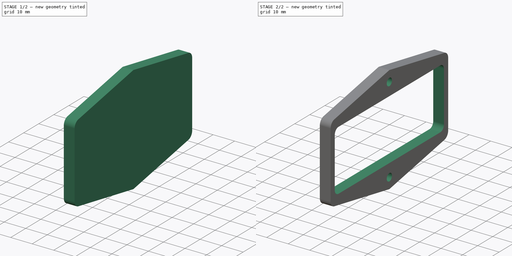
[diagram: build sequence overview — one tinted view per stage of 2, left to right]
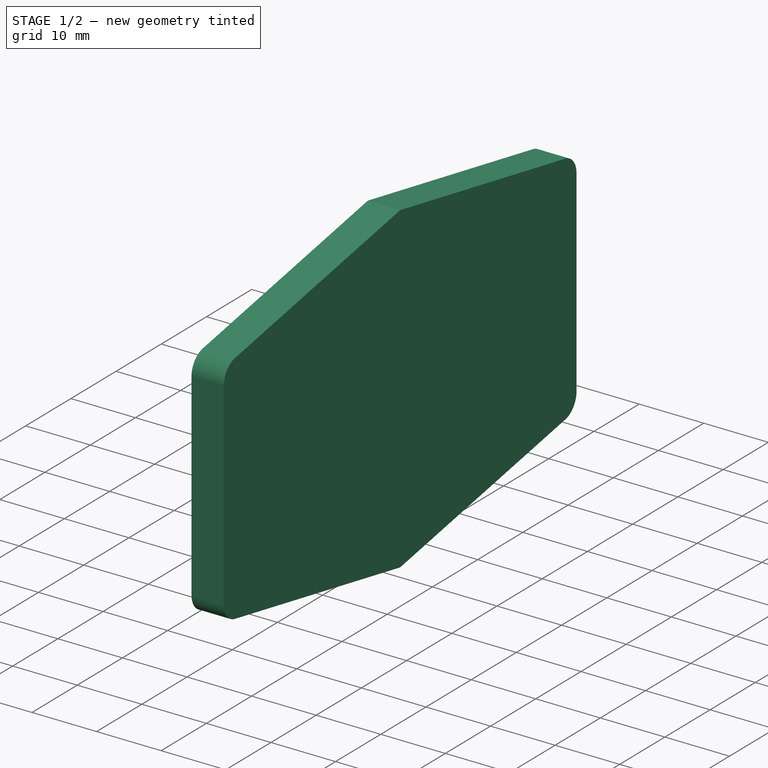
[diagram: stage 1 of 2 — iso view after this stage's code; geometry added in this stage tinted green]
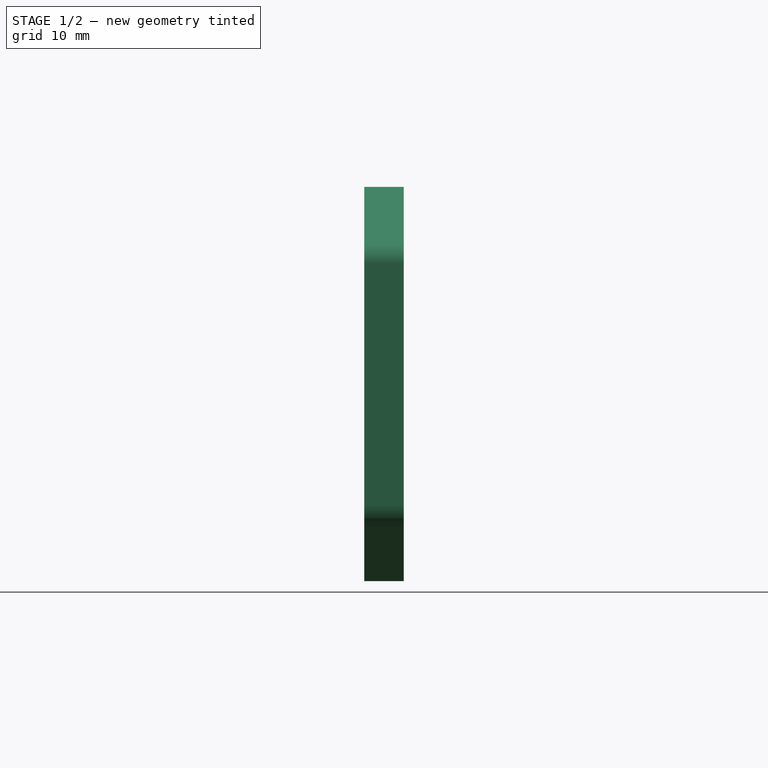
[diagram: stage 1 of 2 — front view after this stage's code; geometry added in this stage tinted green]
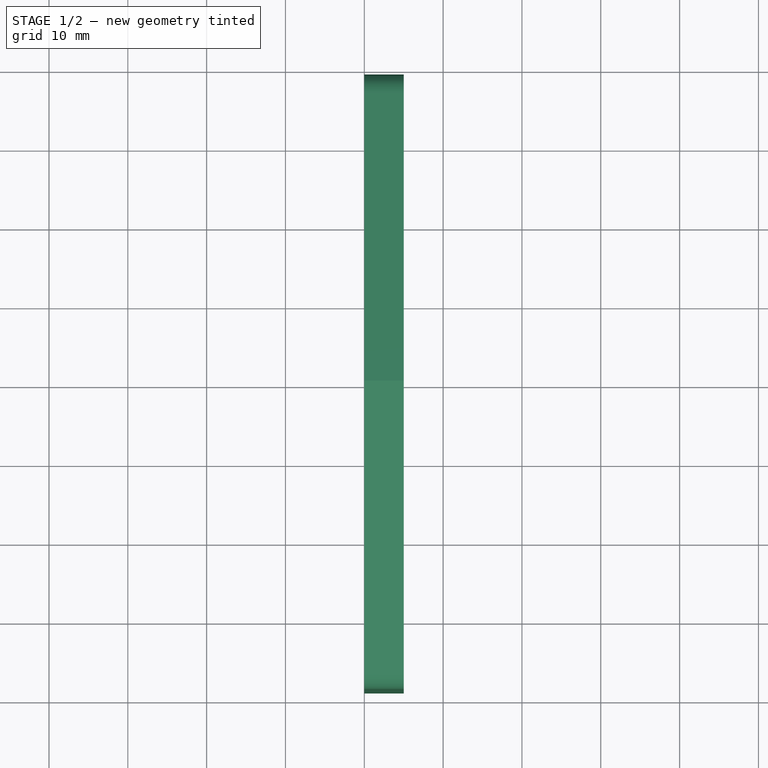
[diagram: stage 1 of 2 — top view after this stage's code; geometry added in this stage tinted green]
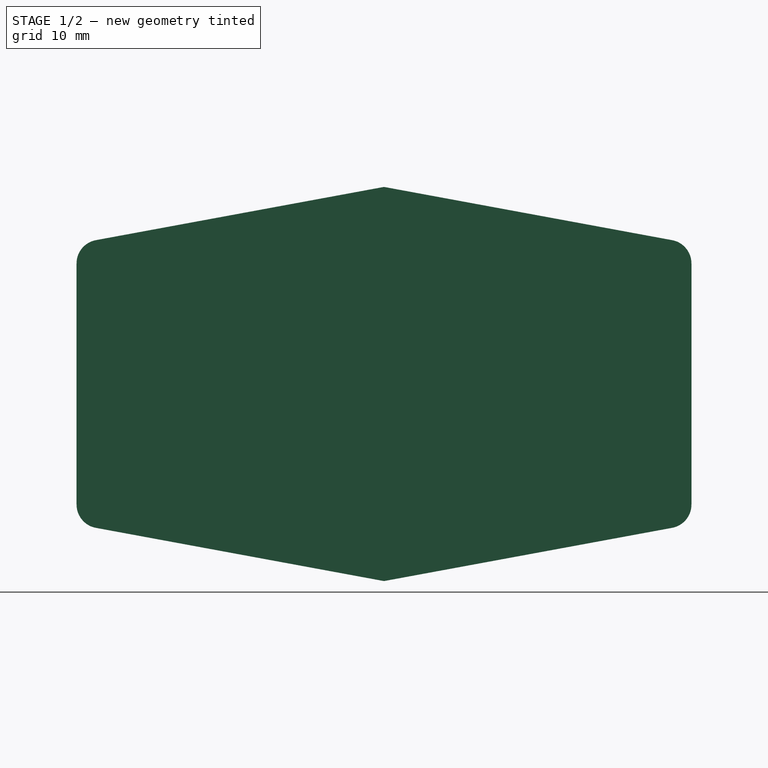
[diagram: stage 1 of 2 — right view after this stage's code; geometry added in this stage tinted green]
FCSTD DOCUMENT  (FreeCAD 1.0R38641 +468 (Git))
Label: qualtek_power_entry
License: All rights reserved
LicenseURL: https://en.wikipedia.org/wiki/All_rights_reserved
objects: Sketcher::SketchObject×2, PartDesign::Pad×1, PartDesign::Pocket×1, PartDesign::Body×1
note: 11 computed .brp shape members not serialized (recipe doc carries the construction recipe); baked Part::Feature solids carry a one-line shape summary decoded from their .brp

FEATURE [Sketcher::SketchObject] Sketch001
  ArcFitTolerance = 1e-06
  FullyConstrained = false
  MakeInternals = false
  MapMode = 5
  Placement = pos=(0,0,0) rot=(0.57735,0.57735,0.57735;2.0944rad)
  sketch-geometry (17):
    g0: LineSegment StartX=39 StartY=9.70127 StartZ=0 EndX=39 EndY=40.2987 EndZ=0
    g1: LineSegment StartX=-39 StartY=40.2987 StartZ=0 EndX=-39 EndY=9.70127 EndZ=0
    g2: LineSegment StartX=36.545 StartY=43.2488 StartZ=0 EndX=0 EndY=50 EndZ=0
    g3: LineSegment StartX=0 StartY=50 StartZ=0 EndX=-36.545 EndY=43.2488 EndZ=0
    g4: LineSegment StartX=-36.545 StartY=6.75119 StartZ=0 EndX=0 EndY=0 EndZ=0
    g5: LineSegment StartX=0 StartY=0 StartZ=0 EndX=36.545 EndY=6.75119 EndZ=0
    g6: ArcOfCircle CenterX=-36 CenterY=40.2987 CenterZ=0 NormalX=0 NormalY=0 NormalZ=1 AngleXU=0 Radius=3 StartAngle=1.75347 EndAngle=3.14159
    g7: GeomPoint [constr] X=-39 Y=42.7953 Z=0
    g8: ArcOfCircle CenterX=36 CenterY=40.2987 CenterZ=0 NormalX=0 NormalY=0 NormalZ=1 AngleXU=0 Radius=3 StartAngle=7e-16 EndAngle=1.38812
    g9: GeomPoint [constr] X=39 Y=42.7953 Z=0
    g10: ArcOfCircle CenterX=36 CenterY=9.70127 CenterZ=0 NormalX=0 NormalY=0 NormalZ=1 AngleXU=0 Radius=3 StartAngle=4.89507 EndAngle=6.28319
    g11: GeomPoint [constr] X=39 Y=7.20472 Z=0
    g12: ArcOfCircle CenterX=-36 CenterY=9.70127 CenterZ=0 NormalX=0 NormalY=0 NormalZ=1 AngleXU=0 Radius=3 StartAngle=3.14159 EndAngle=4.52971
    g13: GeomPoint [constr] X=-39 Y=7.20472 Z=0
    g14: LineSegment [constr] StartX=-39 StartY=25 StartZ=0 EndX=39 EndY=25 EndZ=0
    g15: LineSegment [constr] StartX=0 StartY=50 StartZ=0 EndX=2.5e-15 EndY=25 EndZ=0
    g16: LineSegment [constr] StartX=2.5e-15 StartY=25 StartZ=0 EndX=0 EndY=0 EndZ=0
  constraints (38):
    c: Vertical(g0)
    c: Vertical(g1)
    c: Coincident(g2,g3)
    c: Coincident(g4,g5)
    c: DistanceY(g4,g2) = 50
    c: DistanceX(g13,g11) = 78
    c: PointOnObject(g7,g1)
    c: PointOnObject(g7,g3)
    c: Tangent(g1,g6) = -1.5708
    c: Tangent(g3,g6) = -1.5708
    c: PointOnObject(g9,g0)
    c: PointOnObject(g9,g2)
    c: Tangent(g0,g8) = -1.5708
    c: Tangent(g2,g8) = -1.5708
    c: PointOnObject(g11,g0)
    c: PointOnObject(g11,g5)
    c: Tangent(g0,g10) = -1.5708
    c: Tangent(g5,g10) = -1.5708
    c: PointOnObject(g13,g1)
    c: PointOnObject(g13,g4)
    c: Tangent(g1,g12) = -1.5708
    c: Tangent(g4,g12) = -1.5708
    c: Equal(g12,g6)
    c: Equal(g6,g8)
    c: Equal(g8,g10)
    c: Radius(g6) = 3
    c: Equal(g3,g2)
    c: Coincident(g4,g-1)
    c: Equal(g0,g1)
    c: Equal(g5,g4)
    c: PointOnObject(g2,g-2)
    c: Symmetric(g1,g1,g14)
    c: Symmetric(g0,g0,g14)
    c: Coincident(g15,g2)
    c: Symmetric(g14,g14,g15)
    c: Coincident(g16,g15)
    c: Coincident(g16,g4)
    c: Equal(g16,g15)
FEATURE [Sketcher::SketchObject] Sketch
  ArcFitTolerance = 1e-06
  AttachmentSupport = -> [YZ_Plane]
  ExternalGeometry = -> [Sketch001]
  FullyConstrained = true
  MakeInternals = false
  MapMode = 5
  Placement = pos=(0,0,0) rot=(0.57735,0.57735,0.57735;2.0944rad)
  sketch-geometry (18):
    g0: LineSegment StartX=-33.75 StartY=10.95 StartZ=0 EndX=33.75 EndY=10.95 EndZ=0
    g1: LineSegment StartX=36.25 StartY=13.45 StartZ=0 EndX=36.25 EndY=36.55 EndZ=0
    g2: LineSegment StartX=33.75 StartY=39.05 StartZ=0 EndX=-33.75 EndY=39.05 EndZ=0
    g3: LineSegment StartX=-36.25 StartY=36.55 StartZ=0 EndX=-36.25 EndY=13.45 EndZ=0
    g4: Circle CenterX=0 CenterY=45 CenterZ=0 NormalX=0 NormalY=0 NormalZ=1 AngleXU=0 Radius=1.75
    g5: Circle CenterX=-1.13e-14 CenterY=5 CenterZ=0 NormalX=0 NormalY=0 NormalZ=1 AngleXU=0 Radius=1.75
    g6: ArcOfCircle CenterX=-33.75 CenterY=36.55 CenterZ=0 NormalX=0 NormalY=0 NormalZ=1 AngleXU=0 Radius=2.5 StartAngle=1.5708 EndAngle=3.14159
    g7: GeomPoint [constr] X=-36.25 Y=39.05 Z=0
    g8: ArcOfCircle CenterX=-33.75 CenterY=13.45 CenterZ=0 NormalX=0 NormalY=0 NormalZ=1 AngleXU=0 Radius=2.5 StartAngle=3.14159 EndAngle=4.71239
    g9: GeomPoint [constr] X=-36.25 Y=10.95 Z=0
    g10: ArcOfCircle CenterX=33.75 CenterY=13.45 CenterZ=0 NormalX=0 NormalY=0 NormalZ=1 AngleXU=0 Radius=2.5 StartAngle=4.71239 EndAngle=6.28319
    g11: GeomPoint [constr] X=36.25 Y=10.95 Z=0
    g12: ArcOfCircle CenterX=33.75 CenterY=36.55 CenterZ=0 NormalX=0 NormalY=0 NormalZ=1 AngleXU=0 Radius=2.5 StartAngle=8e-16 EndAngle=1.5708
    g13: GeomPoint [constr] X=36.25 Y=39.05 Z=0
    g14: LineSegment [constr] StartX=0 StartY=45 StartZ=0 EndX=0 EndY=39.05 EndZ=0
    g15: LineSegment [constr] StartX=-1.13e-14 StartY=5 StartZ=0 EndX=-1.13e-14 EndY=10.95 EndZ=0
    g16: LineSegment [constr] StartX=0 StartY=50 StartZ=0 EndX=0 EndY=45 EndZ=0
    g17: LineSegment [constr] StartX=-1.13e-14 StartY=5 StartZ=0 EndX=0 EndY=0 EndZ=0
  constraints (42):
    c: Horizontal(g0)
    c: Horizontal(g2)
    c: Vertical(g1)
    c: Vertical(g3)
    c: Diameter(g4) = 3.5
    c: DistanceY(g5,g4) = 40
    c: DistanceY(g11,g13) = 28.1
    c: DistanceX(g9,g11) = 72.5
    c: PointOnObject(g7,g2)
    c: PointOnObject(g7,g3)
    c: Tangent(g2,g6) = -1.5708
    c: Tangent(g3,g6) = -1.5708
    c: PointOnObject(g9,g0)
    c: PointOnObject(g9,g3)
    c: Tangent(g0,g8) = -1.5708
    c: Tangent(g3,g8) = -1.5708
    c: PointOnObject(g11,g0)
    c: PointOnObject(g11,g1)
    c: Tangent(g0,g10) = -1.5708
    c: Tangent(g1,g10) = -1.5708
    c: PointOnObject(g13,g1)
    c: PointOnObject(g13,g2)
    c: Tangent(g1,g12) = -1.5708
    c: Tangent(g2,g12) = -1.5708
    c: Equal(g8,g6)
    c: Equal(g12,g10)
    c: Equal(g8,g10)
    c: Radius(g8) = 2.5
    c: Coincident(g14,g4)
    c: Symmetric(g2,g2,g14)
    c: Vertical(g14)
    c: Coincident(g15,g5)
    c: Symmetric(g0,g0,g15)
    c: Vertical(g15)
    c: Equal(g15,g14)
    c: Equal(g5,g4)
    c: Coincident(g16,g-3)
    c: Coincident(g16,g4)
    c: Vertical(g16)
    c: Coincident(g17,g5)
    c: Coincident(g17,g-1)
    c: Equal(g17,g16)
FEATURE [PartDesign::Pad] Pad
  Direction = (1,0,0)
  Length = 5
  Length2 = 10
  Placement = pos=(0,0,0) rot=(0.57735,0.57735,0.57735;2.0944rad)
  Profile = -> Sketch001
  ReferenceAxis = -> Sketch001 [N_Axis]
  Refine = true
  Suppressed = false
  Type = 0
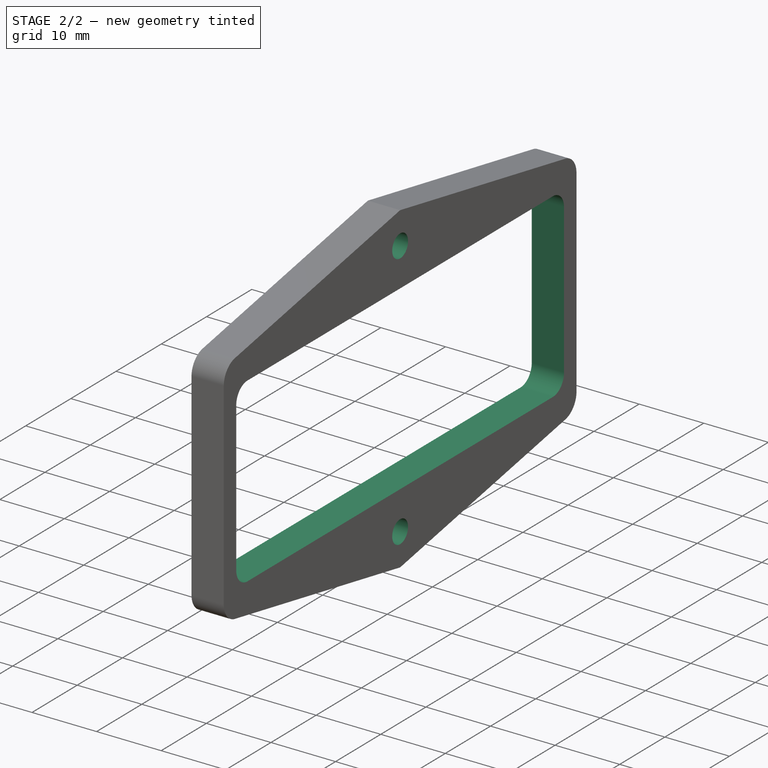
[diagram: stage 2 of 2 — iso view after this stage's code; geometry added in this stage tinted green]
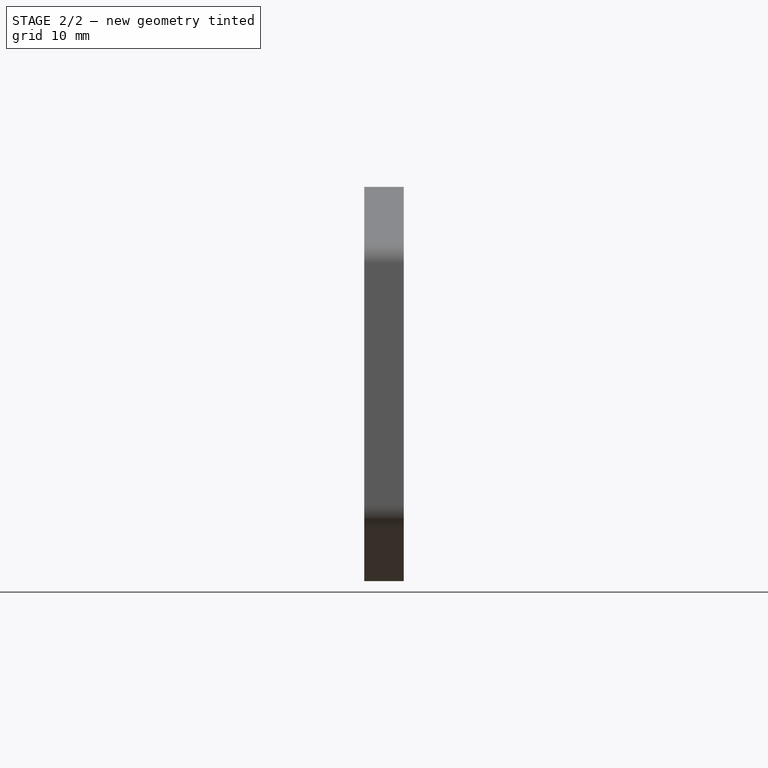
[diagram: stage 2 of 2 — front view after this stage's code; geometry added in this stage tinted green]
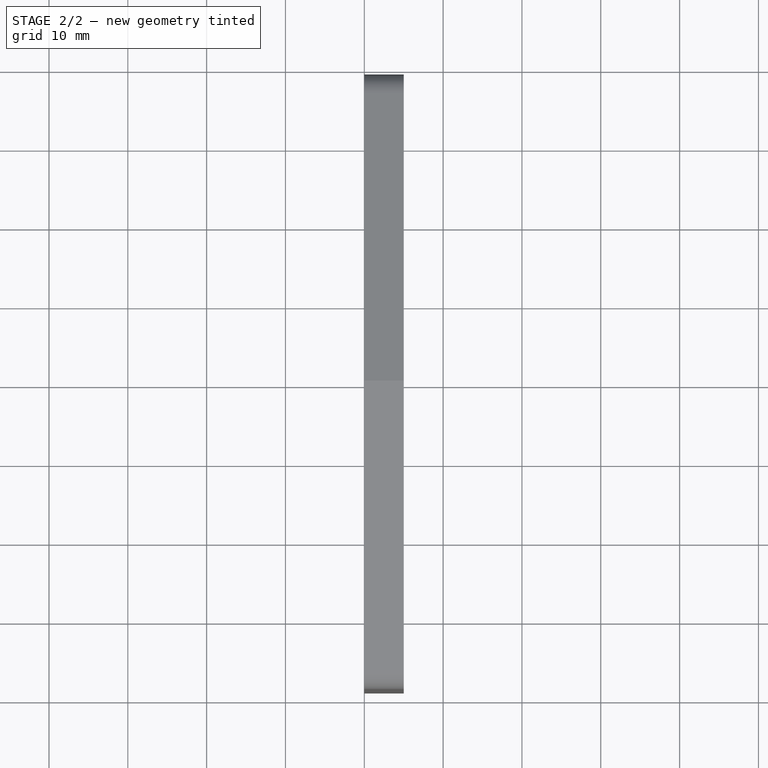
[diagram: stage 2 of 2 — top view after this stage's code; geometry added in this stage tinted green]
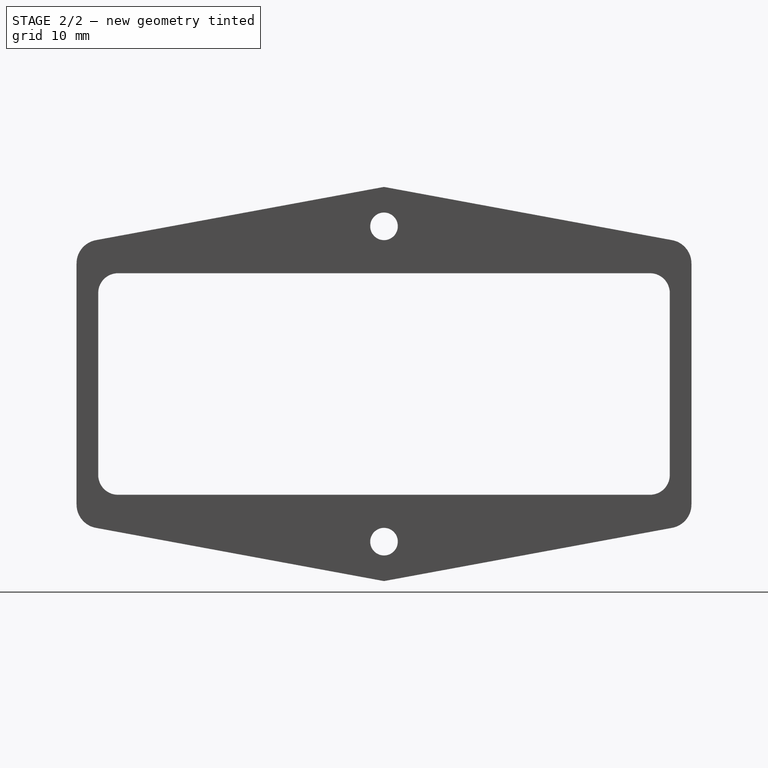
[diagram: stage 2 of 2 — right view after this stage's code; geometry added in this stage tinted green]
FEATURE [PartDesign::Pocket] Pocket
  BaseFeature = -> Pad
  Direction = (-1,0,0)
  Length = 0
  Length2 = 5
  Placement = pos=(0,0,0) rot=(0.57735,0.57735,0.57735;2.0944rad)
  Profile = -> Sketch
  ReferenceAxis = -> Sketch [N_Axis]
  Refine = true
  Suppressed = false
  Type = 3
  UpToFace = -> Pad [Face12]
FEATURE [PartDesign::Body] Body  label="PowerEntry"
  AllowCompound = false
  Group = -> [Sketch001,Pad,Sketch,Pocket]
  Origin = -> Origin
  Tip = -> Pocket
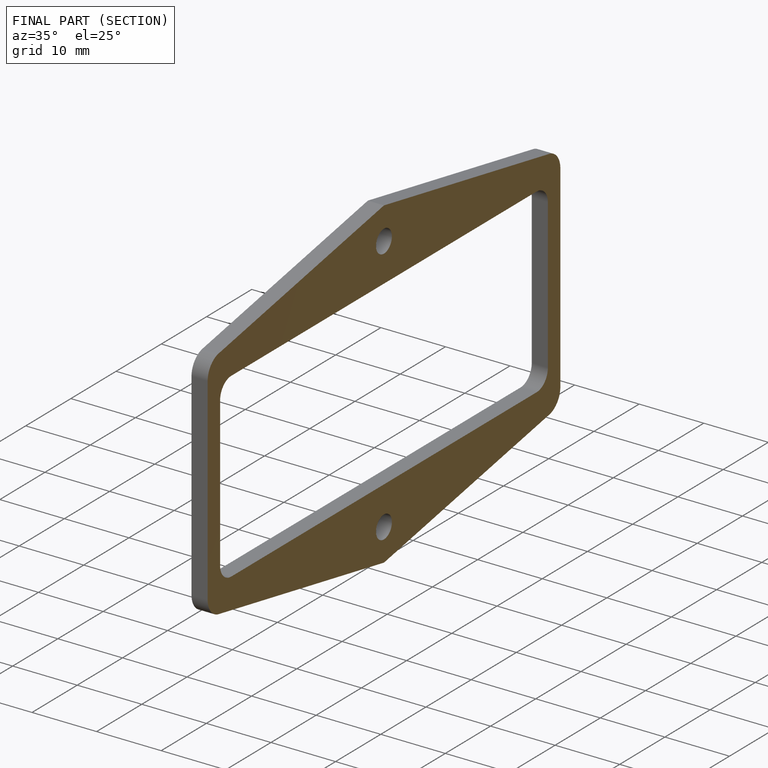
[diagram: finished part — half-section view (interior)]
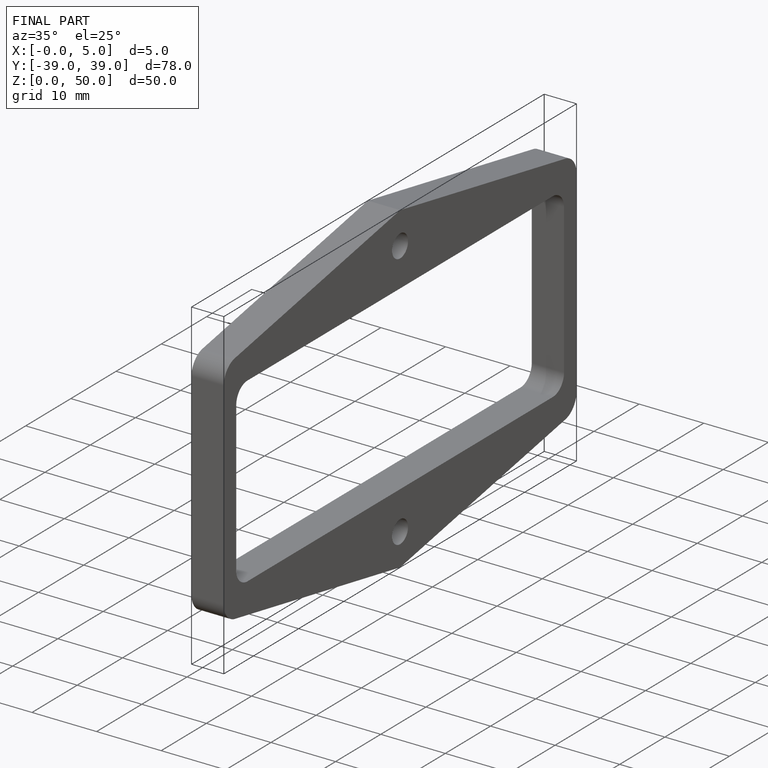
[diagram: finished part — iso view with bounding-box wireframe]
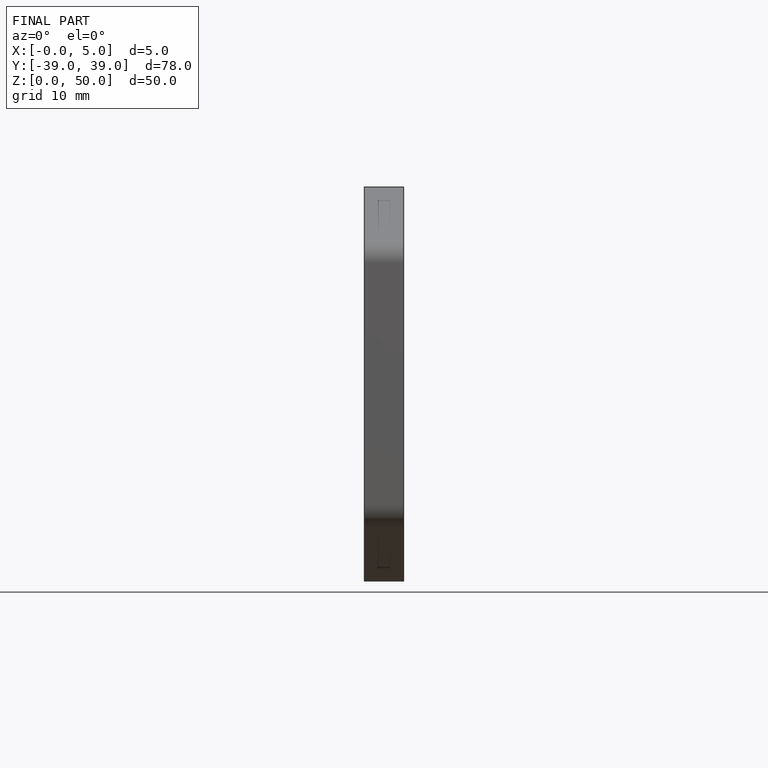
[diagram: finished part — front view with bounding-box wireframe]
